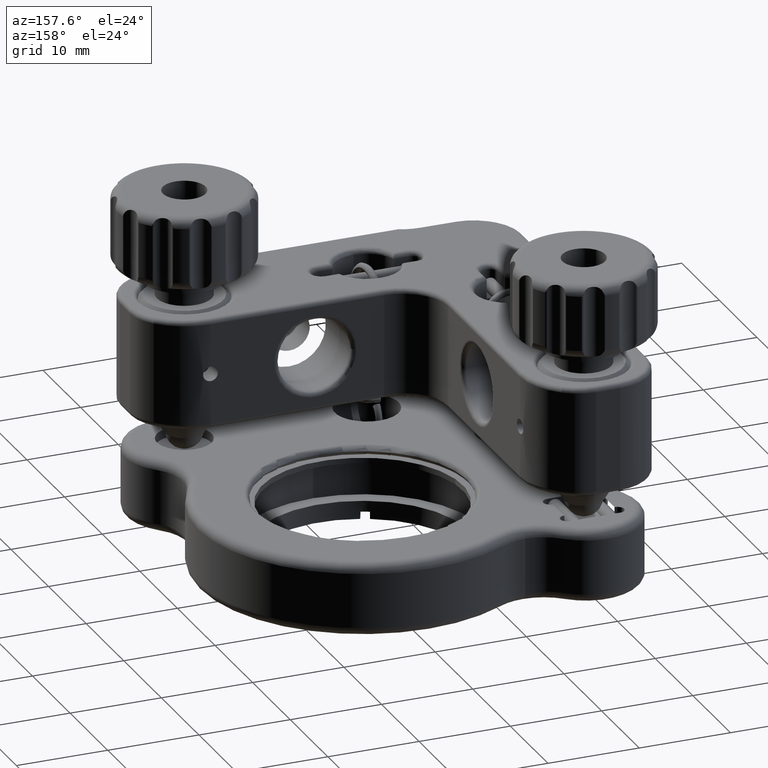
[diagram: clean part render]
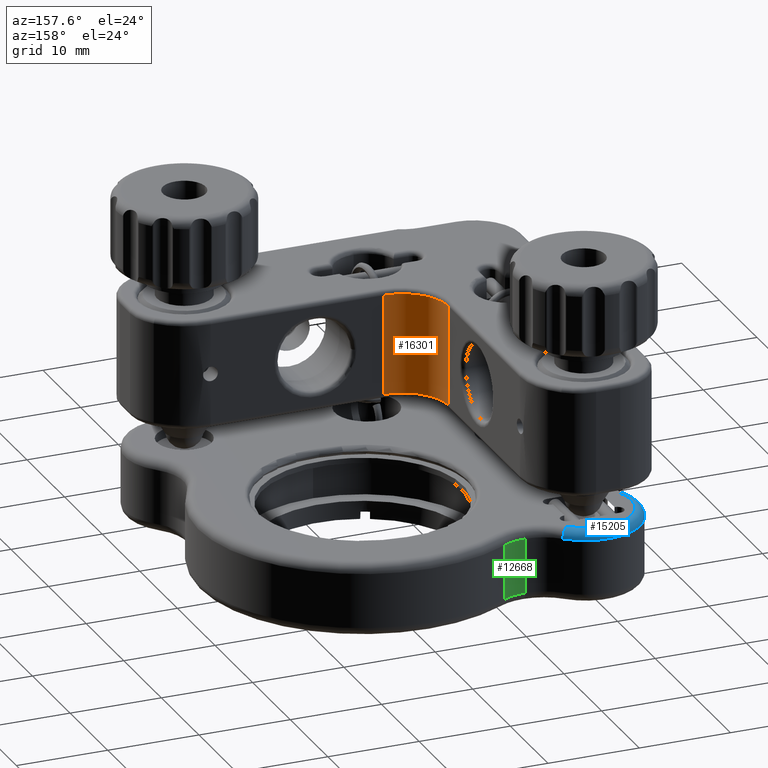
[diagram: same view with three faces highlighted in distinct colors, each labeled with its STEP entity id]
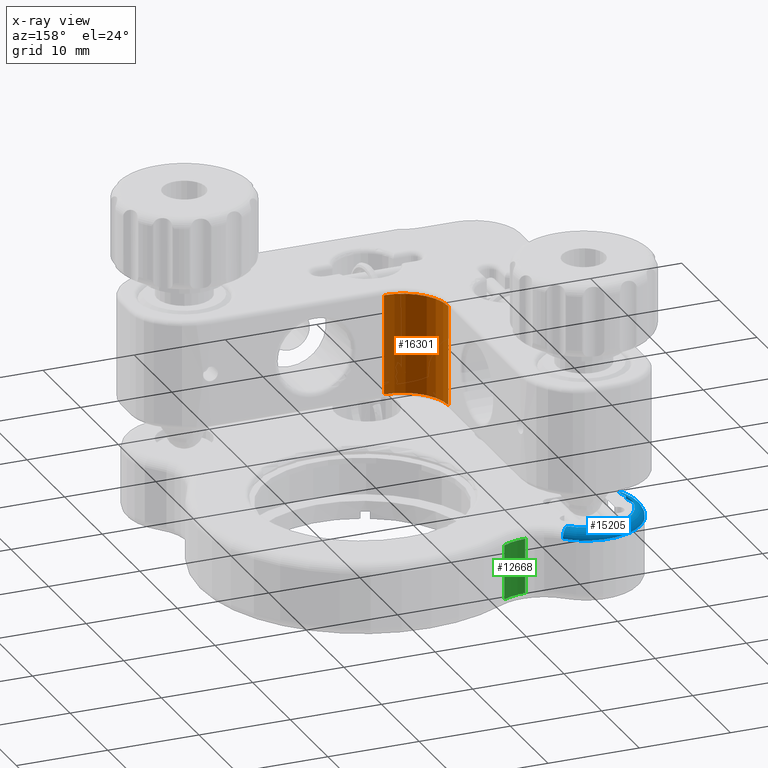
[diagram: x-ray of the same camera — body ghosted, the three highlighted faces saturated]
A machine part, auxiliary view with three faces highlighted in distinct colors.
The next image is the same camera in x-ray (body ghosted, the three faces saturated) — at least one of them is partly hidden behind the body in this view.
Their STEP definitions:

[orange] entity #16301 — the highlighted cylindrical surface (partial cylindrical patch) has radius 5 mm, axis along (-0, -0, 1).
#1077 = AXIS2_PLACEMENT_3D ( 'NONE', #6418, #17770, #1624 ) ;
#1170 = VECTOR ( 'NONE', #2706, 1000.000000000000000 ) ;
#1470 = CYLINDRICAL_SURFACE ( 'NONE', #1077, 5.000000000000000900 ) ;
#1519 = EDGE_LOOP ( 'NONE', ( #7329, #6498, #12200, #20465 ) ) ;
#1624 = DIRECTION ( 'NONE',  ( -1.000000000000000000, 0.0000000000000000000, 0.0000000000000000000 ) ) ;
#2706 = DIRECTION ( 'NONE',  ( -2.602085213965212600E-018, -1.261484113573639200E-032, 1.000000000000000000 ) ) ;
#2961 = DIRECTION ( 'NONE',  ( -2.602085213965212600E-018, -1.261484113573639200E-032, 1.000000000000000000 ) ) ;
#3107 = EDGE_CURVE ( 'NONE', #14840, #4883, #8058, .T. ) ;
#3538 = FACE_OUTER_BOUND ( 'NONE', #1519, .T. ) ;
#3675 = CARTESIAN_POINT ( 'NONE',  ( 11.99999999999999800, 12.00000000000000500, -5.500000000000000000 ) ) ;
#3815 = DIRECTION ( 'NONE',  ( 1.000000000000000000, 0.0000000000000000000, 0.0000000000000000000 ) ) ;
#4883 = VERTEX_POINT ( 'NONE', #13020 ) ;
#5336 = VERTEX_POINT ( 'NONE', #18589 ) ;
#6418 = CARTESIAN_POINT ( 'NONE',  ( 11.99999999999999800, 12.00000000000000500, -6.000000000000000000 ) ) ;
#6498 = ORIENTED_EDGE ( 'NONE', *, *, #12334, .T. ) ;
#6773 = CARTESIAN_POINT ( 'NONE',  ( 12.00000000000000000, 7.000000000000003600, -5.500000000000000000 ) ) ;
#7329 = ORIENTED_EDGE ( 'NONE', *, *, #17321, .T. ) ;
#7854 = DIRECTION ( 'NONE',  ( 1.000000000000000000, 0.0000000000000000000, 0.0000000000000000000 ) ) ;
#7984 = VERTEX_POINT ( 'NONE', #11634 ) ;
#8058 = LINE ( 'NONE', #10844, #1170 ) ;
#10395 = CIRCLE ( 'NONE', #12586, 5.000000000000002700 ) ;
#10844 = CARTESIAN_POINT ( 'NONE',  ( 12.00000000000000000, 7.000000000000003600, -6.000000000000000000 ) ) ;
#11069 = VECTOR ( 'NONE', #15268, 1000.000000000000000 ) ;
#11346 = EDGE_CURVE ( 'NONE', #14840, #5336, #10395, .T. ) ;
#11380 = CIRCLE ( 'NONE', #13747, 5.000000000000002700 ) ;
#11634 = CARTESIAN_POINT ( 'NONE',  ( 6.999999999999999100, 12.00000000000000400, 5.500000000000000000 ) ) ;
#12200 = ORIENTED_EDGE ( 'NONE', *, *, #3107, .F. ) ;
#12334 = EDGE_CURVE ( 'NONE', #7984, #4883, #11380, .T. ) ;
#12516 = CARTESIAN_POINT ( 'NONE',  ( 11.99999999999999800, 12.00000000000000500, 5.500000000000000000 ) ) ;
#12586 = AXIS2_PLACEMENT_3D ( 'NONE', #3675, #14833, #3815 ) ;
#13020 = CARTESIAN_POINT ( 'NONE',  ( 12.00000000000000000, 7.000000000000003600, 5.500000000000000000 ) ) ;
#13646 = CARTESIAN_POINT ( 'NONE',  ( 6.999999999999999100, 12.00000000000000400, -6.000000000000000000 ) ) ;
#13747 = AXIS2_PLACEMENT_3D ( 'NONE', #12516, #2961, #7854 ) ;
#14833 = DIRECTION ( 'NONE',  ( 2.602085213965212600E-018, 1.261484113573639200E-032, -1.000000000000000000 ) ) ;
#14840 = VERTEX_POINT ( 'NONE', #6773 ) ;
#15268 = DIRECTION ( 'NONE',  ( -2.602085213965212600E-018, -1.261484113573639200E-032, 1.000000000000000000 ) ) ;
#16301 = ADVANCED_FACE ( 'NONE', ( #3538 ), #1470, .F. ) ;
#17321 = EDGE_CURVE ( 'NONE', #5336, #7984, #18484, .T. ) ;
#17770 = DIRECTION ( 'NONE',  ( -2.602085213965212600E-018, -1.261484113573639200E-032, 1.000000000000000000 ) ) ;
#18484 = LINE ( 'NONE', #13646, #11069 ) ;
#18589 = CARTESIAN_POINT ( 'NONE',  ( 6.999999999999999100, 12.00000000000000400, -5.500000000000000000 ) ) ;
#20465 = ORIENTED_EDGE ( 'NONE', *, *, #11346, .T. ) ;

[blue] entity #15205 — the highlighted toroidal blend (fillet) surface has major radius 5 mm and minor (blend) radius 1 mm.
#999 = EDGE_CURVE ( 'NONE', #20291, #16471, #4780, .T. ) ;
#1477 = DIRECTION ( 'NONE',  ( -0.7064967411884166500, -0.7077162953402637000, 0.0000000000000000000 ) ) ;
#1611 = DIRECTION ( 'NONE',  ( -0.7077162953402642600, 0.7064967411884161000, -1.395799961482446000E-016 ) ) ;
#2103 = AXIS2_PLACEMENT_3D ( 'NONE', #20545, #15681, #20404 ) ;
#2161 = EDGE_CURVE ( 'NONE', #15992, #16693, #19758, .T. ) ;
#2472 = AXIS2_PLACEMENT_3D ( 'NONE', #6330, #1611, #1477 ) ;
#3300 = CARTESIAN_POINT ( 'NONE',  ( -3.035766082959412400E-014, 31.49999999999999300, -9.999999999999994700 ) ) ;
#4022 = EDGE_LOOP ( 'NONE', ( #5555, #20983, #6033, #20027 ) ) ;
#4780 = CIRCLE ( 'NONE', #2472, 0.9999999999999993300 ) ;
#5555 = ORIENTED_EDGE ( 'NONE', *, *, #999, .T. ) ;
#5747 = EDGE_CURVE ( 'NONE', #16693, #16471, #16379, .T. ) ;
#6033 = ORIENTED_EDGE ( 'NONE', *, *, #2161, .F. ) ;
#6330 = CARTESIAN_POINT ( 'NONE',  ( 3.532483705942026700, 35.03858147670136000, -10.99999999999999300 ) ) ;
#7381 = CARTESIAN_POINT ( 'NONE',  ( -5.454545454545486100, 29.00041325729681000, -10.99999999999999600 ) ) ;
#7888 = DIRECTION ( 'NONE',  ( -3.911801438327713800E-016, -1.942890293094031600E-016, 1.000000000000000000 ) ) ;
#8138 = TOROIDAL_SURFACE ( 'NONE', #2103, 5.000000000000000000, 1.000000000000000000 ) ;
#8338 = DIRECTION ( 'NONE',  ( 1.137978600240785800E-015, -1.000000000000000000, -2.891205793294679300E-016 ) ) ;
#8552 = DIRECTION ( 'NONE',  ( 0.4165977904505304100, -0.9090909090909092800, -1.366160669242318800E-017 ) ) ;
#10037 = CARTESIAN_POINT ( 'NONE',  ( 3.532483705942017800, 35.03858147670134600, -9.999999999999991100 ) ) ;
#10938 = AXIS2_PLACEMENT_3D ( 'NONE', #3300, #7888, #16042 ) ;
#13080 = CIRCLE ( 'NONE', #10938, 5.000000000000000900 ) ;
#13113 = CARTESIAN_POINT ( 'NONE',  ( 4.238980447130445300, 35.74629777204162200, -10.99999999999999300 ) ) ;
#13518 = CARTESIAN_POINT ( 'NONE',  ( -4.545454545454576100, 29.41701104774733700, -10.99999999999999600 ) ) ;
#15205 = ADVANCED_FACE ( 'NONE', ( #15209 ), #8138, .T. ) ;
#15209 = FACE_OUTER_BOUND ( 'NONE', #4022, .T. ) ;
#15338 = DIRECTION ( 'NONE',  ( 0.9090909090909099500, 0.4165977904505292500, 0.0000000000000000000 ) ) ;
#15681 = DIRECTION ( 'NONE',  ( 3.911801438327713800E-016, 1.942890293094031600E-016, -1.000000000000000000 ) ) ;
#15992 = VERTEX_POINT ( 'NONE', #20940 ) ;
#16042 = DIRECTION ( 'NONE',  ( 2.026157019940910300E-015, -1.000000000000000000, -3.469446951953613700E-016 ) ) ;
#16379 = CIRCLE ( 'NONE', #20476, 5.999999999999998200 ) ;
#16471 = VERTEX_POINT ( 'NONE', #13113 ) ;
#16693 = VERTEX_POINT ( 'NONE', #7381 ) ;
#18009 = CARTESIAN_POINT ( 'NONE',  ( -2.949029909160572100E-014, 31.49999999999999300, -10.99999999999999600 ) ) ;
#18075 = DIRECTION ( 'NONE',  ( 3.911801438327713800E-016, 1.942890293094031600E-016, -1.000000000000000000 ) ) ;
#18963 = AXIS2_PLACEMENT_3D ( 'NONE', #13518, #8552, #15338 ) ;
#19294 = EDGE_CURVE ( 'NONE', #20291, #15992, #13080, .T. ) ;
#19758 = CIRCLE ( 'NONE', #18963, 0.9999999999999997800 ) ;
#20027 = ORIENTED_EDGE ( 'NONE', *, *, #19294, .F. ) ;
#20291 = VERTEX_POINT ( 'NONE', #10037 ) ;
#20404 = DIRECTION ( 'NONE',  ( 1.137978600240785700E-015, -1.000000000000000000, -1.942890293094027200E-016 ) ) ;
#20476 = AXIS2_PLACEMENT_3D ( 'NONE', #18009, #18075, #8338 ) ;
#20545 = CARTESIAN_POINT ( 'NONE',  ( -2.949029909160572100E-014, 31.49999999999999300, -10.99999999999999600 ) ) ;
#20940 = CARTESIAN_POINT ( 'NONE',  ( -4.545454545454581400, 29.41701104774733700, -9.999999999999994700 ) ) ;
#20983 = ORIENTED_EDGE ( 'NONE', *, *, #5747, .F. ) ;

[green] entity #12668 — the highlighted cylindrical surface (partial cylindrical patch) has radius 5 mm, axis along (0, 0, -1).
#10 = AXIS2_PLACEMENT_3D ( 'NONE', #14771, #19710, #6793 ) ;
#70 = CIRCLE ( 'NONE', #7689, 4.999999999999990200 ) ;
#556 = ORIENTED_EDGE ( 'NONE', *, *, #7642, .T. ) ;
#1764 = VERTEX_POINT ( 'NONE', #16975 ) ;
#2253 = ORIENTED_EDGE ( 'NONE', *, *, #19478, .T. ) ;
#2604 = ORIENTED_EDGE ( 'NONE', *, *, #17171, .F. ) ;
#2824 = DIRECTION ( 'NONE',  ( 3.911801438327713800E-016, 1.942890293094031600E-016, -1.000000000000000000 ) ) ;
#3263 = VECTOR ( 'NONE', #19767, 1000.000000000000000 ) ;
#3494 = DIRECTION ( 'NONE',  ( -3.911801438327713800E-016, -1.942890293094031600E-016, 1.000000000000000000 ) ) ;
#4425 = EDGE_CURVE ( 'NONE', #11136, #8294, #8289, .T. ) ;
#4894 = CARTESIAN_POINT ( 'NONE',  ( 10.32114585892637300, 34.98381854249449000, -10.99999999999998900 ) ) ;
#4991 = DIRECTION ( 'NONE',  ( 1.214306433183767300E-015, -1.000000000000000000, -3.469446951953621100E-016 ) ) ;
#5158 = CARTESIAN_POINT ( 'NONE',  ( 10.32114585892637300, 34.98381854249449000, -9.999999999999987600 ) ) ;
#6530 = FACE_OUTER_BOUND ( 'NONE', #17283, .T. ) ;
#6793 = DIRECTION ( 'NONE',  ( 1.214306433183767300E-015, -1.000000000000000000, -3.469446951953621100E-016 ) ) ;
#7248 = CARTESIAN_POINT ( 'NONE',  ( 10.32114585892631800, 34.98381854249449000, -16.99999999999998900 ) ) ;
#7642 = EDGE_CURVE ( 'NONE', #8294, #1764, #70, .T. ) ;
#7689 = AXIS2_PLACEMENT_3D ( 'NONE', #9070, #2824, #20436 ) ;
#8289 = LINE ( 'NONE', #5158, #13884 ) ;
#8294 = VERTEX_POINT ( 'NONE', #7248 ) ;
#8492 = CYLINDRICAL_SURFACE ( 'NONE', #10, 4.999999999999990200 ) ;
#9070 = CARTESIAN_POINT ( 'NONE',  ( 7.771464153072537700, 39.28487924874293200, -16.99999999999998900 ) ) ;
#10813 = VERTEX_POINT ( 'NONE', #19354 ) ;
#11136 = VERTEX_POINT ( 'NONE', #4894 ) ;
#11351 = LINE ( 'NONE', #11722, #3263 ) ;
#11497 = DIRECTION ( 'NONE',  ( 3.911801438327713800E-016, 1.942890293094031600E-016, -1.000000000000000000 ) ) ;
#11548 = CARTESIAN_POINT ( 'NONE',  ( 7.771464153072519000, 39.28487924874293200, -10.99999999999998900 ) ) ;
#11722 = CARTESIAN_POINT ( 'NONE',  ( 7.771464153072524400, 34.28487924874293900, -9.999999999999991100 ) ) ;
#12450 = ORIENTED_EDGE ( 'NONE', *, *, #4425, .T. ) ;
#12668 = ADVANCED_FACE ( 'NONE', ( #6530 ), #8492, .F. ) ;
#13884 = VECTOR ( 'NONE', #11497, 1000.000000000000000 ) ;
#14771 = CARTESIAN_POINT ( 'NONE',  ( 7.771464153072519000, 39.28487924874293200, -9.999999999999989300 ) ) ;
#16975 = CARTESIAN_POINT ( 'NONE',  ( 7.771464153072544800, 34.28487924874293900, -16.99999999999998900 ) ) ;
#17171 = EDGE_CURVE ( 'NONE', #10813, #1764, #11351, .T. ) ;
#17283 = EDGE_LOOP ( 'NONE', ( #2604, #2253, #12450, #556 ) ) ;
#17633 = CIRCLE ( 'NONE', #19960, 4.999999999999990200 ) ;
#19354 = CARTESIAN_POINT ( 'NONE',  ( 7.771464153072525200, 34.28487924874293900, -10.99999999999999100 ) ) ;
#19478 = EDGE_CURVE ( 'NONE', #10813, #11136, #17633, .T. ) ;
#19710 = DIRECTION ( 'NONE',  ( 3.911801438327713800E-016, 1.942890293094031600E-016, -1.000000000000000000 ) ) ;
#19767 = DIRECTION ( 'NONE',  ( 3.911801438327713800E-016, 1.942890293094031600E-016, -1.000000000000000000 ) ) ;
#19960 = AXIS2_PLACEMENT_3D ( 'NONE', #11548, #3494, #4991 ) ;
#20436 = DIRECTION ( 'NONE',  ( 1.214306433183767300E-015, -1.000000000000000000, 0.0000000000000000000 ) ) ;